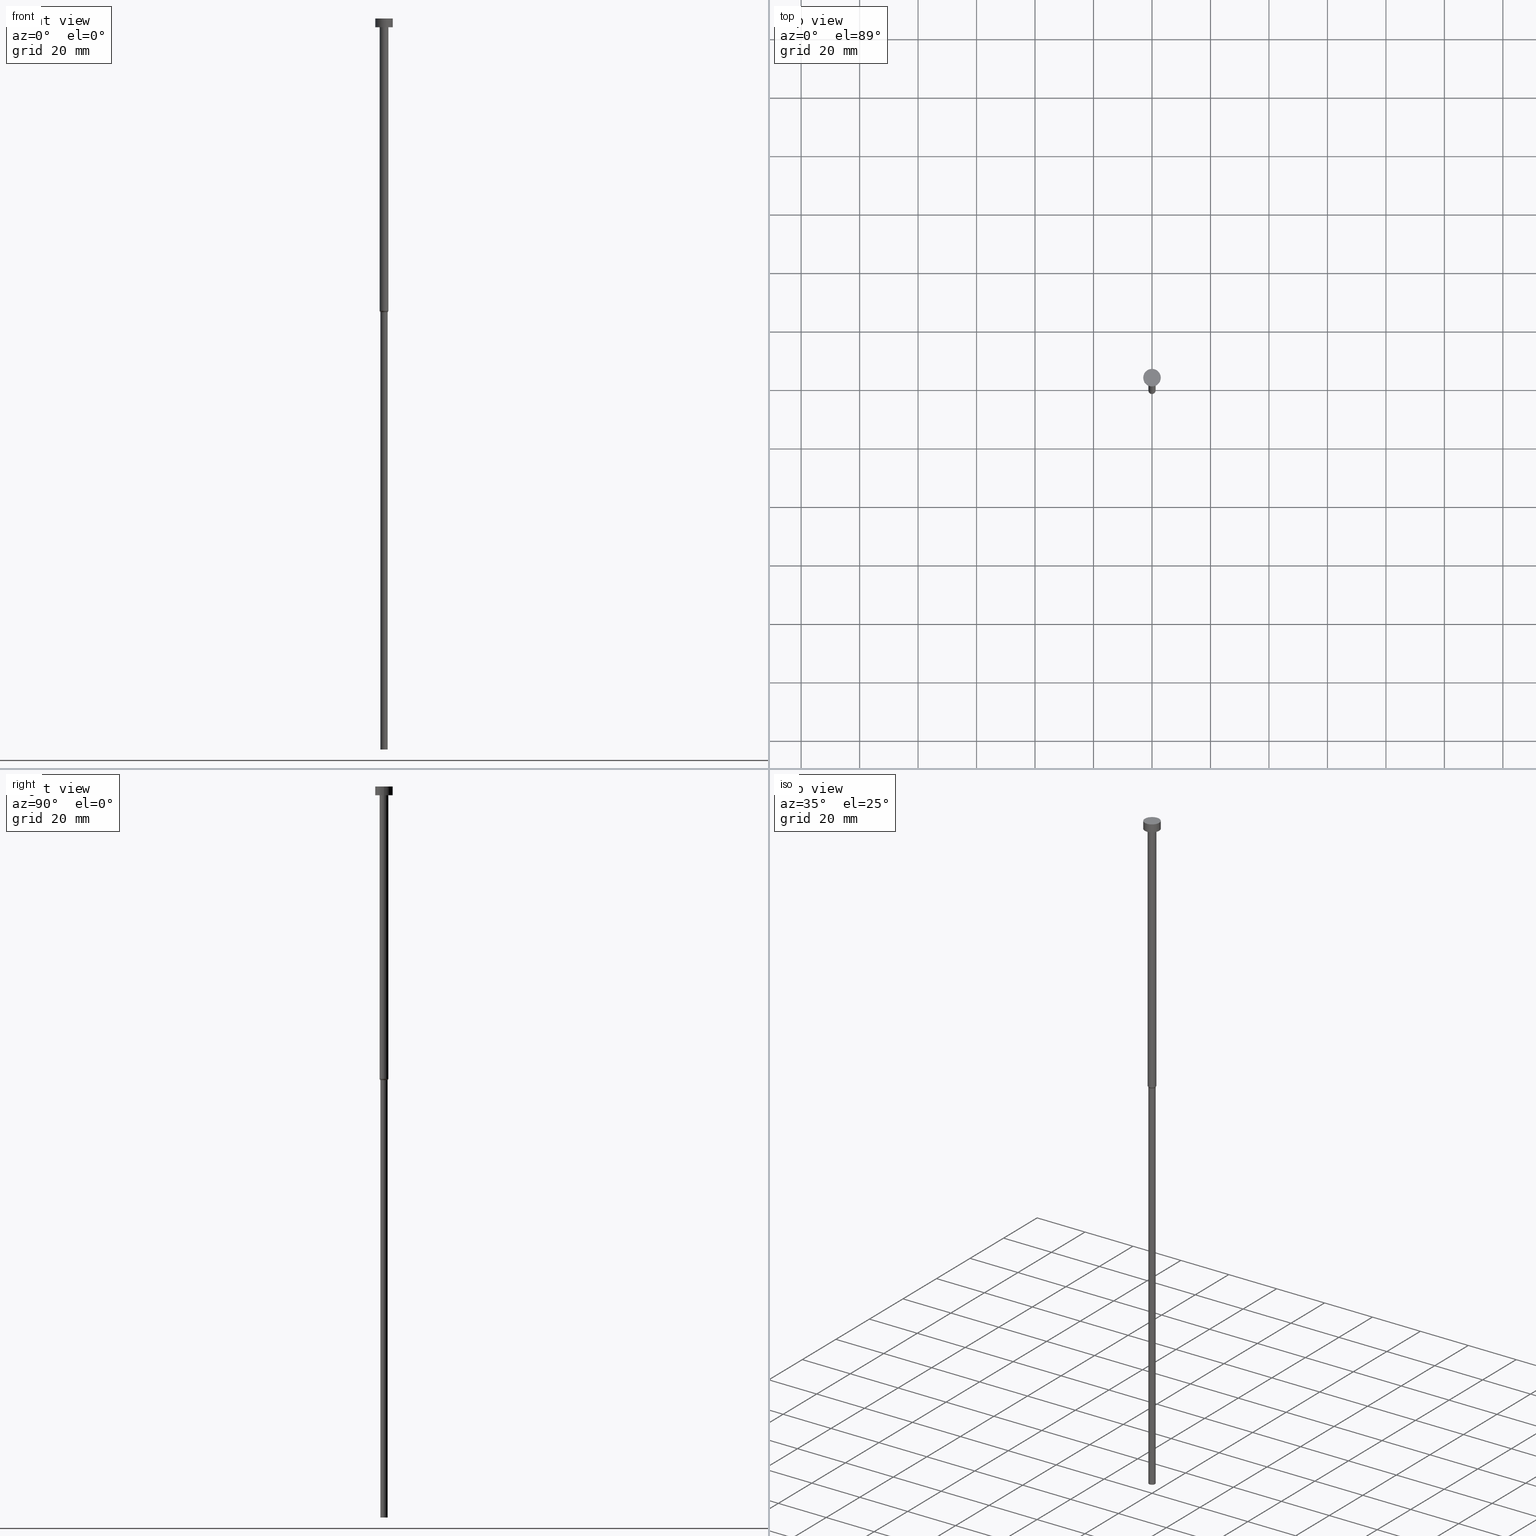
[diagram: canonical four-view strip — front | top / right | iso, engineering-drawing reading convention]
A machine part, canonical four-view strip (front | top / right | iso — engineering-drawing reading convention). The complete STEP part file that produces these views, byte-faithful:
ISO-10303-21;
HEADER;
FILE_DESCRIPTION (( 'STEP AP203' ),
    '1' );
FILE_NAME ('be43.STEP',
    '2023-02-13T09:00:06',
    ( '' ),
    ( '' ),
    'SwSTEP 2.0',
    'SolidWorks 2019',
    '' );
FILE_SCHEMA (( 'CONFIG_CONTROL_DESIGN' ));
ENDSEC;

DATA;
#1 = CARTESIAN_POINT ( 'NONE',  ( -1.500000000000000000, 1.836970198721029934E-16, 0.000000000000000000 ) ) ;
#2 = CIRCLE ( 'NONE', #155, 1.250000000000000000 ) ;
#3 = CARTESIAN_POINT ( 'NONE',  ( 0.000000000000000000, 0.000000000000000000, -3.673940397442059868E-16 ) ) ;
#4 = PRODUCT_RELATED_PRODUCT_CATEGORY ( 'detail', '', ( #196 ) ) ;
#5 = AXIS2_PLACEMENT_3D ( 'NONE', #25, #140, #246 ) ;
#6 = DIRECTION ( 'NONE',  ( -0.000000000000000000, -0.000000000000000000, 1.000000000000000000 ) ) ;
#7 = ORIENTED_EDGE ( 'NONE', *, *, #179, .F. ) ;
#8 = FACE_OUTER_BOUND ( 'NONE', #213, .T. ) ;
#9 = AXIS2_PLACEMENT_3D ( 'NONE', #149, #338, #210 ) ;
#10 = CC_DESIGN_APPROVAL ( #336, ( #237 ) ) ;
#11 = VECTOR ( 'NONE', #331, 1000.000000000000000 ) ;
#12 = DIRECTION ( 'NONE',  ( 1.000000000000000000, 0.000000000000000000, 0.000000000000000000 ) ) ;
#13 = APPLICATION_PROTOCOL_DEFINITION ( 'international standard', 'config_control_design', 1994, #233 ) ;
#14 = LINE ( 'NONE', #315, #354 ) ;
#15 = VECTOR ( 'NONE', #165, 1000.000000000000114 ) ;
#16 = EDGE_CURVE ( 'NONE', #343, #298, #14, .T. ) ;
#17 = CARTESIAN_POINT ( 'NONE',  ( 0.000000000000000000, 0.000000000000000000, -250.0000000000000000 ) ) ;
#18 = APPROVAL_ROLE ( '' ) ;
#19 = COORDINATED_UNIVERSAL_TIME_OFFSET ( 1, 0, .AHEAD. ) ;
#20 = ORIENTED_EDGE ( 'NONE', *, *, #150, .T. ) ;
#21 = DIRECTION ( 'NONE',  ( -0.000000000000000000, -0.000000000000000000, 1.000000000000000000 ) ) ;
#22 = DIRECTION ( 'NONE',  ( -1.000000000000000000, 0.000000000000000000, -0.000000000000000000 ) ) ;
#23 = VECTOR ( 'NONE', #61, 1000.000000000000000 ) ;
#24 = CC_DESIGN_PERSON_AND_ORGANIZATION_ASSIGNMENT ( #48, #323, ( #158 ) ) ;
#25 = CARTESIAN_POINT ( 'NONE',  ( 0.000000000000000000, 0.000000000000000000, -100.4330127018922241 ) ) ;
#26 = DIRECTION ( 'NONE',  ( 1.000000000000000000, 0.000000000000000000, 0.000000000000000000 ) ) ;
#27 = SECURITY_CLASSIFICATION_LEVEL ( 'unclassified' ) ;
#28 = DIRECTION ( 'NONE',  ( -0.000000000000000000, -0.000000000000000000, 1.000000000000000000 ) ) ;
#29 = PRODUCT_DEFINITION_FORMATION_WITH_SPECIFIED_SOURCE ( 'LIBOVOLN�', '', #196, .NOT_KNOWN. ) ;
#30 = ADVANCED_FACE ( 'NONE', ( #80 ), #44, .T. ) ;
#31 = PERSON_AND_ORGANIZATION ( #122, #184 ) ;
#32 = CARTESIAN_POINT ( 'NONE',  ( 1.500000000000000000, 0.000000000000000000, -100.0000000000000000 ) ) ;
#33 = CALENDAR_DATE ( 2023, 13, 2 ) ;
#34 = ORIENTED_EDGE ( 'NONE', *, *, #350, .T. ) ;
#35 = DIRECTION ( 'NONE',  ( 1.000000000000000000, 0.000000000000000000, 0.000000000000000000 ) ) ;
#36 = LOCAL_TIME ( 10, 0, 6.000000000000000000, #63 ) ;
#37 = EDGE_CURVE ( 'NONE', #157, #188, #290, .T. ) ;
#38 = CARTESIAN_POINT ( 'NONE',  ( 3.000000000000000000, 0.000000000000000000, 0.000000000000000000 ) ) ;
#39 = DIRECTION ( 'NONE',  ( -1.000000000000000000, 0.000000000000000000, -0.000000000000000000 ) ) ;
#40 = CALENDAR_DATE ( 2023, 13, 2 ) ;
#41 = EDGE_CURVE ( 'NONE', #212, #343, #186, .T. ) ;
#42 = VECTOR ( 'NONE', #180, 1000.000000000000000 ) ;
#43 = CARTESIAN_POINT ( 'NONE',  ( 0.000000000000000000, 0.000000000000000000, -100.0000000000000000 ) ) ;
#44 = CONICAL_SURFACE ( 'NONE', #51, 1.500000000000000000, 0.5235987755982968173 ) ;
#45 = UNCERTAINTY_MEASURE_WITH_UNIT (LENGTH_MEASURE( 1.000000000000000082E-05 ), #202, 'distance_accuracy_value', 'NONE');
#46 = ORIENTED_EDGE ( 'NONE', *, *, #55, .T. ) ;
#47 = CC_DESIGN_PERSON_AND_ORGANIZATION_ASSIGNMENT ( #291, #161, ( #196 ) ) ;
#48 = PERSON_AND_ORGANIZATION ( #122, #184 ) ;
#49 = VERTEX_POINT ( 'NONE', #332 ) ;
#50 = ORIENTED_EDGE ( 'NONE', *, *, #119, .F. ) ;
#51 = AXIS2_PLACEMENT_3D ( 'NONE', #43, #106, #12 ) ;
#52 = EDGE_LOOP ( 'NONE', ( #320, #245, #159, #219 ) ) ;
#53 = PERSON_AND_ORGANIZATION_ROLE ( 'creator' ) ;
#54 = DIRECTION ( 'NONE',  ( -0.000000000000000000, -0.000000000000000000, 1.000000000000000000 ) ) ;
#55 = EDGE_CURVE ( 'NONE', #67, #192, #112, .T. ) ;
#56 = CIRCLE ( 'NONE', #9, 1.500000000000000000 ) ;
#57 = CARTESIAN_POINT ( 'NONE',  ( 0.000000000000000000, 0.000000000000000000, -1.836970198721029934E-16 ) ) ;
#58 = ADVANCED_BREP_SHAPE_REPRESENTATION ( 'be43', ( #118, #207 ), #347 ) ;
#59 = DIRECTION ( 'NONE',  ( -0.000000000000000000, -0.000000000000000000, 1.000000000000000000 ) ) ;
#60 = DATE_AND_TIME ( #276, #279 ) ;
#61 = DIRECTION ( 'NONE',  ( -0.000000000000000000, -0.000000000000000000, 1.000000000000000000 ) ) ;
#62 = CIRCLE ( 'NONE', #261, 3.000000000000000000 ) ;
#63 = COORDINATED_UNIVERSAL_TIME_OFFSET ( 1, 0, .AHEAD. ) ;
#64 = CARTESIAN_POINT ( 'NONE',  ( 1.500000000000000000, 0.000000000000000000, 0.000000000000000000 ) ) ;
#65 = LOCAL_TIME ( 10, 0, 6.000000000000000000, #230 ) ;
#66 = LINE ( 'NONE', #1, #166 ) ;
#67 = VERTEX_POINT ( 'NONE', #229 ) ;
#68 = DIRECTION ( 'NONE',  ( -0.000000000000000000, -0.000000000000000000, 1.000000000000000000 ) ) ;
#69 = EDGE_CURVE ( 'NONE', #316, #325, #168, .T. ) ;
#70 = CYLINDRICAL_SURFACE ( 'NONE', #109, 1.500000000000000000 ) ;
#71 = AXIS2_PLACEMENT_3D ( 'NONE', #329, #299, #22 ) ;
#72 = CC_DESIGN_APPROVAL ( #144, ( #158 ) ) ;
#73 = CARTESIAN_POINT ( 'NONE',  ( 0.000000000000000000, 0.000000000000000000, -250.0000000000000000 ) ) ;
#74 = ORIENTED_EDGE ( 'NONE', *, *, #242, .F. ) ;
#75 = CARTESIAN_POINT ( 'NONE',  ( 0.000000000000000000, 0.000000000000000000, -100.0000000000000000 ) ) ;
#76 = ORIENTED_EDGE ( 'NONE', *, *, #169, .T. ) ;
#77 = ORIENTED_EDGE ( 'NONE', *, *, #16, .F. ) ;
#78 = AXIS2_PLACEMENT_3D ( 'NONE', #224, #277, #326 ) ;
#79 = EDGE_CURVE ( 'NONE', #49, #298, #274, .T. ) ;
#80 = FACE_OUTER_BOUND ( 'NONE', #344, .T. ) ;
#81 = MECHANICAL_CONTEXT ( 'NONE', #151, 'mechanical' ) ;
#82 = ORIENTED_EDGE ( 'NONE', *, *, #16, .T. ) ;
#83 = AXIS2_PLACEMENT_3D ( 'NONE', #335, #68, #148 ) ;
#84 = EDGE_LOOP ( 'NONE', ( #296, #82, #244, #74 ) ) ;
#85 = CARTESIAN_POINT ( 'NONE',  ( -3.000000000000000000, 3.673940397442059868E-16, -3.673940397442059868E-16 ) ) ;
#86 = CIRCLE ( 'NONE', #108, 1.500000000000000000 ) ;
#87 = APPROVAL_PERSON_ORGANIZATION ( #31, #336, #116 ) ;
#88 = DIRECTION ( 'NONE',  ( 1.000000000000000000, 0.000000000000000000, 0.000000000000000000 ) ) ;
#89 = CC_DESIGN_DATE_AND_TIME_ASSIGNMENT ( #153, #262, ( #158 ) ) ;
#90 = DIRECTION ( 'NONE',  ( 1.000000000000000000, 0.000000000000000000, 0.000000000000000000 ) ) ;
#91 = LINE ( 'NONE', #64, #11 ) ;
#92 = CALENDAR_DATE ( 2023, 13, 2 ) ;
#93 = FACE_OUTER_BOUND ( 'NONE', #238, .T. ) ;
#94 = LINE ( 'NONE', #38, #42 ) ;
#95 = ADVANCED_FACE ( 'NONE', ( #251 ), #172, .T. ) ;
#96 = ORIENTED_EDGE ( 'NONE', *, *, #282, .T. ) ;
#97 = CARTESIAN_POINT ( 'NONE',  ( 0.000000000000000000, 0.000000000000000000, 0.000000000000000000 ) ) ;
#98 = CARTESIAN_POINT ( 'NONE',  ( 0.000000000000000000, 0.000000000000000000, 0.000000000000000000 ) ) ;
#99 = CYLINDRICAL_SURFACE ( 'NONE', #241, 1.250000000000000000 ) ;
#100 = CARTESIAN_POINT ( 'NONE',  ( 0.000000000000000000, 0.000000000000000000, 0.000000000000000000 ) ) ;
#101 = ORIENTED_EDGE ( 'NONE', *, *, #105, .F. ) ;
#102 = EDGE_LOOP ( 'NONE', ( #104, #164 ) ) ;
#103 = CALENDAR_DATE ( 2023, 13, 2 ) ;
#104 = ORIENTED_EDGE ( 'NONE', *, *, #340, .T. ) ;
#105 = EDGE_CURVE ( 'NONE', #294, #67, #259, .T. ) ;
#106 = DIRECTION ( 'NONE',  ( -0.000000000000000000, -0.000000000000000000, 1.000000000000000000 ) ) ;
#107 = ORIENTED_EDGE ( 'NONE', *, *, #340, .F. ) ;
#108 = AXIS2_PLACEMENT_3D ( 'NONE', #303, #355, #115 ) ;
#109 = AXIS2_PLACEMENT_3D ( 'NONE', #98, #337, #152 ) ;
#110 = CC_DESIGN_PERSON_AND_ORGANIZATION_ASSIGNMENT ( #254, #177, ( #237 ) ) ;
#111 = CARTESIAN_POINT ( 'NONE',  ( -1.500000000000000000, 1.836970198721029934E-16, -100.0000000000000000 ) ) ;
#112 = LINE ( 'NONE', #170, #23 ) ;
#113 = FACE_OUTER_BOUND ( 'NONE', #217, .T. ) ;
#114 = ADVANCED_FACE ( 'NONE', ( #249 ), #197, .T. ) ;
#115 = DIRECTION ( 'NONE',  ( 1.000000000000000000, 0.000000000000000000, 0.000000000000000000 ) ) ;
#116 = APPROVAL_ROLE ( '' ) ;
#117 = DIRECTION ( 'NONE',  ( -0.000000000000000000, -0.000000000000000000, 1.000000000000000000 ) ) ;
#118 = MANIFOLD_SOLID_BREP ( 'Rotovat1', #142 ) ;
#119 = EDGE_CURVE ( 'NONE', #316, #188, #91, .T. ) ;
#120 = FACE_OUTER_BOUND ( 'NONE', #84, .T. ) ;
#121 = CARTESIAN_POINT ( 'NONE',  ( 1.250000000000000000, 0.000000000000000000, 0.000000000000000000 ) ) ;
#122 = PERSON ( 'NEUR�EN�', 'NEUR�EN�', 'NEUR�EN�', ('NEUR�EN�'), ('NEUR�EN�'), ('NEUR�EN�') ) ;
#123 = CYLINDRICAL_SURFACE ( 'NONE', #273, 3.000000000000000000 ) ;
#124 = ORIENTED_EDGE ( 'NONE', *, *, #41, .F. ) ;
#125 = PERSON_AND_ORGANIZATION ( #122, #184 ) ;
#126 = CARTESIAN_POINT ( 'NONE',  ( 0.000000000000000000, 0.000000000000000000, -3.000000000000000888 ) ) ;
#127 = ADVANCED_FACE ( 'NONE', ( #113 ), #199, .T. ) ;
#128 = ORIENTED_EDGE ( 'NONE', *, *, #317, .F. ) ;
#129 = AXIS2_PLACEMENT_3D ( 'NONE', #221, #134, #272 ) ;
#130 = CONICAL_SURFACE ( 'NONE', #220, 1.500000000000000000, 0.5235987755982968173 ) ;
#131 = EDGE_LOOP ( 'NONE', ( #185, #20, #187, #270 ) ) ;
#132 = EDGE_LOOP ( 'NONE', ( #124, #216 ) ) ;
#133 = EDGE_CURVE ( 'NONE', #49, #316, #304, .T. ) ;
#134 = DIRECTION ( 'NONE',  ( -0.000000000000000000, -0.000000000000000000, 1.000000000000000000 ) ) ;
#135 = PERSON_AND_ORGANIZATION ( #122, #184 ) ;
#136 = CARTESIAN_POINT ( 'NONE',  ( 0.000000000000000000, 0.000000000000000000, -3.000000000000000888 ) ) ;
#137 = CARTESIAN_POINT ( 'NONE',  ( 0.000000000000000000, 0.000000000000000000, -3.673940397442059868E-16 ) ) ;
#138 = DIRECTION ( 'NONE',  ( 1.000000000000000000, 0.000000000000000000, 0.000000000000000000 ) ) ;
#139 = APPROVAL_STATUS ( 'not_yet_approved' ) ;
#140 = DIRECTION ( 'NONE',  ( -0.000000000000000000, -0.000000000000000000, 1.000000000000000000 ) ) ;
#141 = PERSON_AND_ORGANIZATION ( #122, #184 ) ;
#142 = CLOSED_SHELL ( 'NONE', ( #333, #301, #30, #223, #293, #127, #345, #257, #195, #114, #95 ) ) ;
#143 = DIRECTION ( 'NONE',  ( -0.000000000000000000, -0.000000000000000000, 1.000000000000000000 ) ) ;
#144 = APPROVAL ( #342, 'NEUR�EN�' ) ;
#145 = DATE_AND_TIME ( #33, #65 ) ;
#146 = DIRECTION ( 'NONE',  ( -0.000000000000000000, -0.000000000000000000, 1.000000000000000000 ) ) ;
#147 = CIRCLE ( 'NONE', #154, 3.000000000000000000 ) ;
#148 = DIRECTION ( 'NONE',  ( 1.000000000000000000, 0.000000000000000000, 0.000000000000000000 ) ) ;
#149 = CARTESIAN_POINT ( 'NONE',  ( 0.000000000000000000, 0.000000000000000000, -3.000000000000000888 ) ) ;
#150 = EDGE_CURVE ( 'NONE', #67, #294, #62, .T. ) ;
#151 = APPLICATION_CONTEXT ( 'configuration controlled 3d designs of mechanical parts and assemblies' ) ;
#152 = DIRECTION ( 'NONE',  ( 1.000000000000000000, 0.000000000000000000, 0.000000000000000000 ) ) ;
#153 = DATE_AND_TIME ( #40, #324 ) ;
#154 = AXIS2_PLACEMENT_3D ( 'NONE', #137, #21, #302 ) ;
#155 = AXIS2_PLACEMENT_3D ( 'NONE', #178, #283, #205 ) ;
#156 = PRODUCT_DEFINITION_SHAPE ( 'NONE', 'NONE',  #158 ) ;
#157 = VERTEX_POINT ( 'NONE', #327 ) ;
#158 = PRODUCT_DEFINITION ( 'NEZN�M�', '', #29, #271 ) ;
#159 = ORIENTED_EDGE ( 'NONE', *, *, #119, .T. ) ;
#160 = VERTEX_POINT ( 'NONE', #198 ) ;
#161 = PERSON_AND_ORGANIZATION_ROLE ( 'design_owner' ) ;
#162 = EDGE_CURVE ( 'NONE', #325, #316, #86, .T. ) ;
#163 = ORIENTED_EDGE ( 'NONE', *, *, #69, .F. ) ;
#164 = ORIENTED_EDGE ( 'NONE', *, *, #37, .T. ) ;
#165 = DIRECTION ( 'NONE',  ( -0.4999999999999981681, 6.123233995736742617E-17, 0.8660254037844395958 ) ) ;
#166 = VECTOR ( 'NONE', #117, 1000.000000000000000 ) ;
#167 = CARTESIAN_POINT ( 'NONE',  ( 0.000000000000000000, 0.000000000000000000, -3.000000000000000888 ) ) ;
#168 = CIRCLE ( 'NONE', #78, 1.500000000000000000 ) ;
#169 = EDGE_CURVE ( 'NONE', #160, #192, #147, .T. ) ;
#170 = CARTESIAN_POINT ( 'NONE',  ( -3.000000000000000000, 3.673940397442059868E-16, 0.000000000000000000 ) ) ;
#171 = APPROVAL_DATE_TIME ( #60, #287 ) ;
#172 = PLANE ( 'NONE',  #214 ) ;
#173 = VECTOR ( 'NONE', #174, 1000.000000000000114 ) ;
#174 = DIRECTION ( 'NONE',  ( 0.4999999999999981681, 0.000000000000000000, 0.8660254037844395958 ) ) ;
#175 = EDGE_CURVE ( 'NONE', #343, #212, #284, .T. ) ;
#176 = PERSON_AND_ORGANIZATION_ROLE ( 'design_supplier' ) ;
#177 = PERSON_AND_ORGANIZATION_ROLE ( 'classification_officer' ) ;
#178 = CARTESIAN_POINT ( 'NONE',  ( 0.000000000000000000, 0.000000000000000000, -100.4330127018922241 ) ) ;
#179 = EDGE_CURVE ( 'NONE', #298, #325, #348, .T. ) ;
#180 = DIRECTION ( 'NONE',  ( -0.000000000000000000, -0.000000000000000000, 1.000000000000000000 ) ) ;
#181 = DIRECTION ( 'NONE',  ( 0.000000000000000000, 0.000000000000000000, -1.000000000000000000 ) ) ;
#182 = ORIENTED_EDGE ( 'NONE', *, *, #69, .T. ) ;
#183 =( NAMED_UNIT ( * ) SI_UNIT ( $, .STERADIAN. ) SOLID_ANGLE_UNIT ( ) );
#184 = ORGANIZATION ( 'NEUR�EN�', 'NEUR�EN�', '' ) ;
#185 = ORIENTED_EDGE ( 'NONE', *, *, #55, .F. ) ;
#186 = CIRCLE ( 'NONE', #252, 1.250000000000000000 ) ;
#187 = ORIENTED_EDGE ( 'NONE', *, *, #317, .T. ) ;
#188 = VERTEX_POINT ( 'NONE', #300 ) ;
#189 = DIRECTION ( 'NONE',  ( 1.000000000000000000, 0.000000000000000000, 0.000000000000000000 ) ) ;
#190 = ORIENTED_EDGE ( 'NONE', *, *, #282, .F. ) ;
#191 = APPROVAL_PERSON_ORGANIZATION ( #218, #144, #295 ) ;
#192 = VERTEX_POINT ( 'NONE', #85 ) ;
#193 = FACE_OUTER_BOUND ( 'NONE', #208, .T. ) ;
#194 = FACE_BOUND ( 'NONE', #102, .T. ) ;
#195 = ADVANCED_FACE ( 'NONE', ( #194, #193 ), #275, .T. ) ;
#196 = PRODUCT ( 'be43', 'be43', '', ( #81 ) ) ;
#197 = CYLINDRICAL_SURFACE ( 'NONE', #203, 3.000000000000000000 ) ;
#198 = CARTESIAN_POINT ( 'NONE',  ( 3.000000000000000000, 0.000000000000000000, -3.673940397442059868E-16 ) ) ;
#199 = CYLINDRICAL_SURFACE ( 'NONE', #226, 1.250000000000000000 ) ;
#200 = AXIS2_PLACEMENT_3D ( 'NONE', #3, #146, #35 ) ;
#201 = DATE_TIME_ROLE ( 'classification_date' ) ;
#202 =( LENGTH_UNIT ( ) NAMED_UNIT ( * ) SI_UNIT ( .MILLI., .METRE. ) );
#203 = AXIS2_PLACEMENT_3D ( 'NONE', #349, #248, #26 ) ;
#204 = EDGE_LOOP ( 'NONE', ( #76, #268 ) ) ;
#205 = DIRECTION ( 'NONE',  ( 1.000000000000000000, 0.000000000000000000, 0.000000000000000000 ) ) ;
#206 = CARTESIAN_POINT ( 'NONE',  ( -1.500000000000000000, 1.836970198721029934E-16, -100.0000000000000000 ) ) ;
#207 = AXIS2_PLACEMENT_3D ( 'NONE', #100, #239, #189 ) ;
#208 = EDGE_LOOP ( 'NONE', ( #101, #243 ) ) ;
#209 = AXIS2_PLACEMENT_3D ( 'NONE', #126, #240, #266 ) ;
#210 = DIRECTION ( 'NONE',  ( 1.000000000000000000, 0.000000000000000000, 0.000000000000000000 ) ) ;
#211 = EDGE_CURVE ( 'NONE', #192, #160, #250, .T. ) ;
#212 = VERTEX_POINT ( 'NONE', #231 ) ;
#213 = EDGE_LOOP ( 'NONE', ( #263, #46, #292, #128 ) ) ;
#214 = AXIS2_PLACEMENT_3D ( 'NONE', #57, #247, #88 ) ;
#215 = DATE_AND_TIME ( #103, #288 ) ;
#216 = ORIENTED_EDGE ( 'NONE', *, *, #175, .F. ) ;
#217 = EDGE_LOOP ( 'NONE', ( #77, #341, #235, #190 ) ) ;
#218 = PERSON_AND_ORGANIZATION ( #122, #184 ) ;
#219 = ORIENTED_EDGE ( 'NONE', *, *, #37, .F. ) ;
#220 = AXIS2_PLACEMENT_3D ( 'NONE', #75, #280, #253 ) ;
#221 = CARTESIAN_POINT ( 'NONE',  ( 0.000000000000000000, 0.000000000000000000, -250.0000000000000000 ) ) ;
#222 = AXIS2_PLACEMENT_3D ( 'NONE', #167, #351, #90 ) ;
#223 = ADVANCED_FACE ( 'NONE', ( #120 ), #99, .T. ) ;
#224 = CARTESIAN_POINT ( 'NONE',  ( 0.000000000000000000, 0.000000000000000000, -100.0000000000000000 ) ) ;
#225 = DIRECTION ( 'NONE',  ( 1.000000000000000000, 0.000000000000000000, 0.000000000000000000 ) ) ;
#226 = AXIS2_PLACEMENT_3D ( 'NONE', #228, #54, #278 ) ;
#227 = APPROVAL_PERSON_ORGANIZATION ( #125, #287, #18 ) ;
#228 = CARTESIAN_POINT ( 'NONE',  ( 0.000000000000000000, 0.000000000000000000, 0.000000000000000000 ) ) ;
#229 = CARTESIAN_POINT ( 'NONE',  ( -3.000000000000000000, 3.673940397442059868E-16, -3.000000000000000888 ) ) ;
#230 = COORDINATED_UNIVERSAL_TIME_OFFSET ( 1, 0, .AHEAD. ) ;
#231 = CARTESIAN_POINT ( 'NONE',  ( 1.250000000000000000, 0.000000000000000000, -250.0000000000000000 ) ) ;
#232 = CC_DESIGN_PERSON_AND_ORGANIZATION_ASSIGNMENT ( #141, #53, ( #29 ) ) ;
#233 = APPLICATION_CONTEXT ( 'configuration controlled 3d designs of mechanical parts and assemblies' ) ;
#234 = DIRECTION ( 'NONE',  ( 1.000000000000000000, 0.000000000000000000, 0.000000000000000000 ) ) ;
#235 = ORIENTED_EDGE ( 'NONE', *, *, #242, .T. ) ;
#236 = DIRECTION ( 'NONE',  ( 1.000000000000000000, 0.000000000000000000, 0.000000000000000000 ) ) ;
#237 = SECURITY_CLASSIFICATION ( '', '', #27 ) ;
#238 = EDGE_LOOP ( 'NONE', ( #182, #34, #107, #50 ) ) ;
#239 = DIRECTION ( 'NONE',  ( 0.000000000000000000, 0.000000000000000000, 1.000000000000000000 ) ) ;
#240 = DIRECTION ( 'NONE',  ( -0.000000000000000000, -0.000000000000000000, 1.000000000000000000 ) ) ;
#241 = AXIS2_PLACEMENT_3D ( 'NONE', #97, #6, #234 ) ;
#242 = EDGE_CURVE ( 'NONE', #212, #49, #311, .T. ) ;
#243 = ORIENTED_EDGE ( 'NONE', *, *, #150, .F. ) ;
#244 = ORIENTED_EDGE ( 'NONE', *, *, #79, .F. ) ;
#245 = ORIENTED_EDGE ( 'NONE', *, *, #162, .T. ) ;
#246 = DIRECTION ( 'NONE',  ( 1.000000000000000000, 0.000000000000000000, 0.000000000000000000 ) ) ;
#247 = DIRECTION ( 'NONE',  ( 0.000000000000000000, -0.000000000000000000, 1.000000000000000000 ) ) ;
#248 = DIRECTION ( 'NONE',  ( -0.000000000000000000, -0.000000000000000000, 1.000000000000000000 ) ) ;
#249 = FACE_OUTER_BOUND ( 'NONE', #131, .T. ) ;
#250 = CIRCLE ( 'NONE', #200, 3.000000000000000000 ) ;
#251 = FACE_OUTER_BOUND ( 'NONE', #204, .T. ) ;
#252 = AXIS2_PLACEMENT_3D ( 'NONE', #17, #59, #138 ) ;
#253 = DIRECTION ( 'NONE',  ( 1.000000000000000000, 0.000000000000000000, 0.000000000000000000 ) ) ;
#254 = PERSON_AND_ORGANIZATION ( #122, #184 ) ;
#255 = FACE_OUTER_BOUND ( 'NONE', #52, .T. ) ;
#256 = CC_DESIGN_APPROVAL ( #287, ( #29 ) ) ;
#257 = ADVANCED_FACE ( 'NONE', ( #255 ), #286, .T. ) ;
#258 = CARTESIAN_POINT ( 'NONE',  ( 0.000000000000000000, 0.000000000000000000, 0.000000000000000000 ) ) ;
#259 = CIRCLE ( 'NONE', #222, 3.000000000000000000 ) ;
#260 = FACE_OUTER_BOUND ( 'NONE', #132, .T. ) ;
#261 = AXIS2_PLACEMENT_3D ( 'NONE', #136, #28, #225 ) ;
#262 = DATE_TIME_ROLE ( 'creation_date' ) ;
#263 = ORIENTED_EDGE ( 'NONE', *, *, #105, .T. ) ;
#264 = ORIENTED_EDGE ( 'NONE', *, *, #162, .F. ) ;
#265 = CC_DESIGN_SECURITY_CLASSIFICATION ( #237, ( #29 ) ) ;
#266 = DIRECTION ( 'NONE',  ( 1.000000000000000000, 0.000000000000000000, 0.000000000000000000 ) ) ;
#267 = COORDINATED_UNIVERSAL_TIME_OFFSET ( 1, 0, .AHEAD. ) ;
#268 = ORIENTED_EDGE ( 'NONE', *, *, #211, .T. ) ;
#269 = COORDINATED_UNIVERSAL_TIME_OFFSET ( 1, 0, .AHEAD. ) ;
#270 = ORIENTED_EDGE ( 'NONE', *, *, #211, .F. ) ;
#271 = DESIGN_CONTEXT ( 'detailed design', #233, 'design' ) ;
#272 = DIRECTION ( 'NONE',  ( 1.000000000000000000, 0.000000000000000000, 0.000000000000000000 ) ) ;
#273 = AXIS2_PLACEMENT_3D ( 'NONE', #258, #285, #236 ) ;
#274 = CIRCLE ( 'NONE', #5, 1.250000000000000000 ) ;
#275 = PLANE ( 'NONE',  #71 ) ;
#276 = CALENDAR_DATE ( 2023, 13, 2 ) ;
#277 = DIRECTION ( 'NONE',  ( -0.000000000000000000, -0.000000000000000000, 1.000000000000000000 ) ) ;
#278 = DIRECTION ( 'NONE',  ( 1.000000000000000000, 0.000000000000000000, 0.000000000000000000 ) ) ;
#279 = LOCAL_TIME ( 10, 0, 6.000000000000000000, #269 ) ;
#280 = DIRECTION ( 'NONE',  ( -0.000000000000000000, -0.000000000000000000, 1.000000000000000000 ) ) ;
#281 = FACE_OUTER_BOUND ( 'NONE', #313, .T. ) ;
#282 = EDGE_CURVE ( 'NONE', #298, #49, #2, .T. ) ;
#283 = DIRECTION ( 'NONE',  ( -0.000000000000000000, -0.000000000000000000, 1.000000000000000000 ) ) ;
#284 = CIRCLE ( 'NONE', #129, 1.250000000000000000 ) ;
#285 = DIRECTION ( 'NONE',  ( -0.000000000000000000, -0.000000000000000000, 1.000000000000000000 ) ) ;
#286 = CYLINDRICAL_SURFACE ( 'NONE', #83, 1.500000000000000000 ) ;
#287 = APPROVAL ( #318, 'NEUR�EN�' ) ;
#288 = LOCAL_TIME ( 10, 0, 6.000000000000000000, #267 ) ;
#289 = DIRECTION ( 'NONE',  ( -0.000000000000000000, -0.000000000000000000, 1.000000000000000000 ) ) ;
#290 = CIRCLE ( 'NONE', #209, 1.500000000000000000 ) ;
#291 = PERSON_AND_ORGANIZATION ( #122, #184 ) ;
#292 = ORIENTED_EDGE ( 'NONE', *, *, #169, .F. ) ;
#293 = ADVANCED_FACE ( 'NONE', ( #260 ), #306, .T. ) ;
#294 = VERTEX_POINT ( 'NONE', #310 ) ;
#295 = APPROVAL_ROLE ( '' ) ;
#296 = ORIENTED_EDGE ( 'NONE', *, *, #41, .T. ) ;
#297 = CC_DESIGN_DATE_AND_TIME_ASSIGNMENT ( #328, #201, ( #237 ) ) ;
#298 = VERTEX_POINT ( 'NONE', #309 ) ;
#299 = DIRECTION ( 'NONE',  ( 0.000000000000000000, 0.000000000000000000, -1.000000000000000000 ) ) ;
#300 = CARTESIAN_POINT ( 'NONE',  ( 1.500000000000000000, 0.000000000000000000, -3.000000000000000888 ) ) ;
#301 = ADVANCED_FACE ( 'NONE', ( #93 ), #70, .T. ) ;
#302 = DIRECTION ( 'NONE',  ( 1.000000000000000000, 0.000000000000000000, 0.000000000000000000 ) ) ;
#303 = CARTESIAN_POINT ( 'NONE',  ( 0.000000000000000000, 0.000000000000000000, -100.0000000000000000 ) ) ;
#304 = LINE ( 'NONE', #352, #173 ) ;
#305 = VECTOR ( 'NONE', #143, 1000.000000000000000 ) ;
#306 = PLANE ( 'NONE',  #353 ) ;
#307 = ORIENTED_EDGE ( 'NONE', *, *, #79, .T. ) ;
#308 = APPROVAL_DATE_TIME ( #145, #336 ) ;
#309 = CARTESIAN_POINT ( 'NONE',  ( -1.250000000000000000, 1.530808498934191571E-16, -100.4330127018922241 ) ) ;
#310 = CARTESIAN_POINT ( 'NONE',  ( 3.000000000000000000, 0.000000000000000000, -3.000000000000000888 ) ) ;
#311 = LINE ( 'NONE', #121, #305 ) ;
#312 = CARTESIAN_POINT ( 'NONE',  ( -1.250000000000000000, 1.530808498934191571E-16, -250.0000000000000000 ) ) ;
#313 = EDGE_LOOP ( 'NONE', ( #7, #96, #346, #264 ) ) ;
#314 =( NAMED_UNIT ( * ) PLANE_ANGLE_UNIT ( ) SI_UNIT ( $, .RADIAN. ) );
#315 = CARTESIAN_POINT ( 'NONE',  ( -1.250000000000000000, 1.530808498934191571E-16, 0.000000000000000000 ) ) ;
#316 = VERTEX_POINT ( 'NONE', #32 ) ;
#317 = EDGE_CURVE ( 'NONE', #294, #160, #94, .T. ) ;
#318 = APPROVAL_STATUS ( 'not_yet_approved' ) ;
#319 = APPROVAL_DATE_TIME ( #215, #144 ) ;
#320 = ORIENTED_EDGE ( 'NONE', *, *, #350, .F. ) ;
#321 = APPLICATION_PROTOCOL_DEFINITION ( 'international standard', 'config_control_design', 1994, #151 ) ;
#322 = ORIENTED_EDGE ( 'NONE', *, *, #133, .F. ) ;
#323 = PERSON_AND_ORGANIZATION_ROLE ( 'creator' ) ;
#324 = LOCAL_TIME ( 10, 0, 6.000000000000000000, #19 ) ;
#325 = VERTEX_POINT ( 'NONE', #206 ) ;
#326 = DIRECTION ( 'NONE',  ( 1.000000000000000000, 0.000000000000000000, 0.000000000000000000 ) ) ;
#327 = CARTESIAN_POINT ( 'NONE',  ( -1.500000000000000000, 1.836970198721029934E-16, -3.000000000000000888 ) ) ;
#328 = DATE_AND_TIME ( #92, #36 ) ;
#329 = CARTESIAN_POINT ( 'NONE',  ( 0.000000000000000000, -3.000000000000000000, -3.000000000000000888 ) ) ;
#330 = CC_DESIGN_PERSON_AND_ORGANIZATION_ASSIGNMENT ( #135, #176, ( #29 ) ) ;
#331 = DIRECTION ( 'NONE',  ( -0.000000000000000000, -0.000000000000000000, 1.000000000000000000 ) ) ;
#332 = CARTESIAN_POINT ( 'NONE',  ( 1.250000000000000000, 0.000000000000000000, -100.4330127018922241 ) ) ;
#333 = ADVANCED_FACE ( 'NONE', ( #8 ), #123, .T. ) ;
#334 = SHAPE_DEFINITION_REPRESENTATION ( #156, #58 ) ;
#335 = CARTESIAN_POINT ( 'NONE',  ( 0.000000000000000000, 0.000000000000000000, 0.000000000000000000 ) ) ;
#336 = APPROVAL ( #139, 'NEUR�EN�' ) ;
#337 = DIRECTION ( 'NONE',  ( -0.000000000000000000, -0.000000000000000000, 1.000000000000000000 ) ) ;
#338 = DIRECTION ( 'NONE',  ( -0.000000000000000000, -0.000000000000000000, 1.000000000000000000 ) ) ;
#339 = ORIENTED_EDGE ( 'NONE', *, *, #179, .T. ) ;
#340 = EDGE_CURVE ( 'NONE', #188, #157, #56, .T. ) ;
#341 = ORIENTED_EDGE ( 'NONE', *, *, #175, .T. ) ;
#342 = APPROVAL_STATUS ( 'not_yet_approved' ) ;
#343 = VERTEX_POINT ( 'NONE', #312 ) ;
#344 = EDGE_LOOP ( 'NONE', ( #307, #339, #163, #322 ) ) ;
#345 = ADVANCED_FACE ( 'NONE', ( #281 ), #130, .T. ) ;
#346 = ORIENTED_EDGE ( 'NONE', *, *, #133, .T. ) ;
#347 =( GEOMETRIC_REPRESENTATION_CONTEXT ( 3 ) GLOBAL_UNCERTAINTY_ASSIGNED_CONTEXT ( ( #45 ) ) GLOBAL_UNIT_ASSIGNED_CONTEXT ( ( #202, #314, #183 ) ) REPRESENTATION_CONTEXT ( 'NONE', 'WORKASPACE' ) );
#348 = LINE ( 'NONE', #111, #15 ) ;
#349 = CARTESIAN_POINT ( 'NONE',  ( 0.000000000000000000, 0.000000000000000000, 0.000000000000000000 ) ) ;
#350 = EDGE_CURVE ( 'NONE', #325, #157, #66, .T. ) ;
#351 = DIRECTION ( 'NONE',  ( -0.000000000000000000, -0.000000000000000000, 1.000000000000000000 ) ) ;
#352 = CARTESIAN_POINT ( 'NONE',  ( 1.500000000000000000, 0.000000000000000000, -100.0000000000000000 ) ) ;
#353 = AXIS2_PLACEMENT_3D ( 'NONE', #73, #181, #39 ) ;
#354 = VECTOR ( 'NONE', #289, 1000.000000000000000 ) ;
#355 = DIRECTION ( 'NONE',  ( -0.000000000000000000, -0.000000000000000000, 1.000000000000000000 ) ) ;
ENDSEC;
END-ISO-10303-21;
